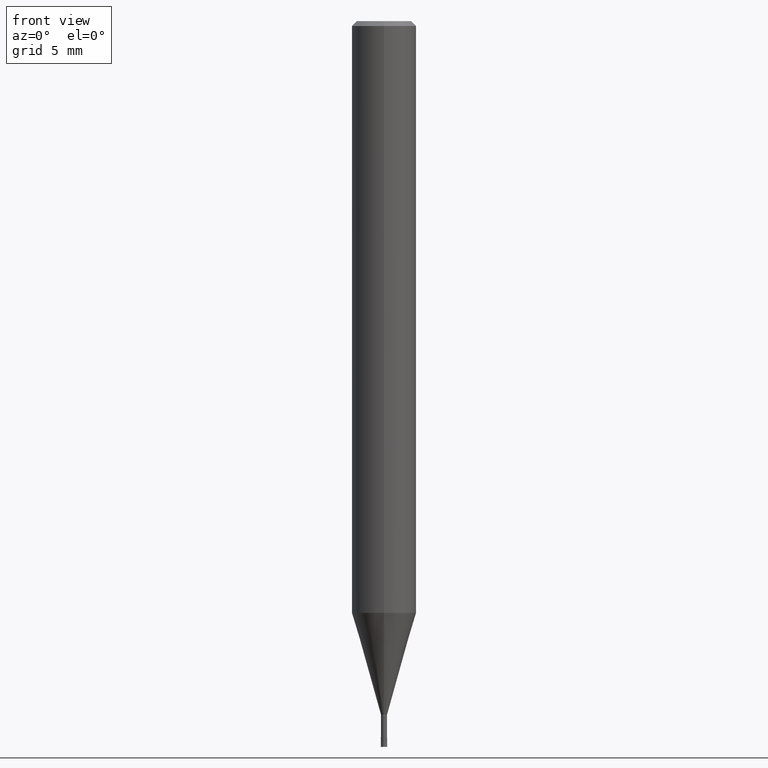
[diagram: clean part render]
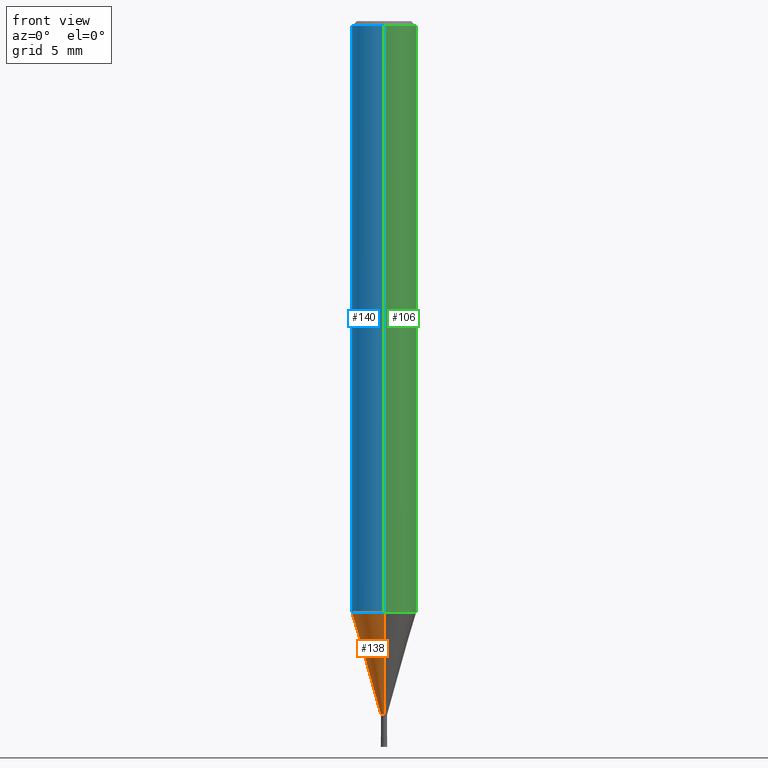
[diagram: same view with three faces highlighted in distinct colors, each labeled with its STEP entity id]
A machine part, front view with three faces highlighted in distinct colors.
Their STEP definitions:

[orange] entity #138 — the highlighted conical surface has half-angle 16.001 deg.
#102=EDGE_CURVE('',#122,#182,#240,.T.);
#122=VERTEX_POINT('',#265);
#126=EDGE_CURVE('',#182,#192,#269,.T.);
#134=EDGE_CURVE('',#192,#180,#277,.T.);
#138=ADVANCED_FACE('',(#282),#283,.T.);
#170=EDGE_CURVE('',#122,#180,#318,.T.);
#180=VERTEX_POINT('',#329);
#182=VERTEX_POINT('',#331);
#192=VERTEX_POINT('',#342);
#240=LINE('',#387,#388);
#265=CARTESIAN_POINT('',(2.3261397690856E-017,-0.18995,-43.0));
#269=CIRCLE('',#426,1.99995);
#277=LINE('',#439,#440);
#282=FACE_OUTER_BOUND('',#445,.T.);
#283=CONICAL_SURFACE('',#446,1.09495,0.279261921280279);
#318=CIRCLE('',#492,0.18995);
#329=CARTESIAN_POINT('',(0.0,0.18995,-43.0));
#331=CARTESIAN_POINT('',(2.44915147732706E-016,-1.99995,-36.688));
#342=CARTESIAN_POINT('',(0.0,1.99995,-36.688));
#387=CARTESIAN_POINT('',(1.34088272711781E-016,-1.09495,-39.844));
#388=VECTOR('',#557,1.0);
#426=AXIS2_PLACEMENT_3D('',#595,#596,#597);
#439=CARTESIAN_POINT('',(-1.34088272711781E-016,1.09495,-39.844));
#440=VECTOR('',#605,1.0);
#445=EDGE_LOOP('',(#615,#616,#617,#618));
#446=AXIS2_PLACEMENT_3D('',#619,#620,#621);
#492=AXIS2_PLACEMENT_3D('',#659,#660,#661);
#557=DIRECTION('',(3.37558135426109E-017,-0.275646238787252,0.961259148743169));
#595=CARTESIAN_POINT('',(0.0,0.0,-36.688));
#596=DIRECTION('',(0.0,0.0,-1.0));
#597=DIRECTION('',(0.0,1.0,0.0));
#605=DIRECTION('',(3.37558135426109E-017,-0.275646238787252,-0.961259148743169));
#615=ORIENTED_EDGE('',*,*,#134,.T.);
#616=ORIENTED_EDGE('',*,*,#170,.F.);
#617=ORIENTED_EDGE('',*,*,#102,.T.);
#618=ORIENTED_EDGE('',*,*,#126,.T.);
#619=CARTESIAN_POINT('',(0.0,0.0,-39.844));
#620=DIRECTION('',(-0.0,-0.0,1.0));
#621=DIRECTION('',(0.0,1.0,0.0));
#659=CARTESIAN_POINT('',(0.0,0.0,-43.0));
#660=DIRECTION('',(0.0,0.0,-1.0));
#661=DIRECTION('',(0.0,1.0,0.0));

[blue] entity #140 — the highlighted cylindrical surface (edge-blend (fillet) strip) has radius 2 mm, axis along (-0, -0, 1).
#124=EDGE_CURVE('',#196,#206,#267,.T.);
#130=EDGE_CURVE('',#166,#196,#273,.T.);
#140=ADVANCED_FACE('',(#285),#286,.T.);
#150=VERTEX_POINT('',#296);
#160=EDGE_CURVE('',#150,#166,#307,.T.);
#166=VERTEX_POINT('',#314);
#188=EDGE_CURVE('',#150,#206,#337,.T.);
#196=VERTEX_POINT('',#346);
#206=VERTEX_POINT('',#359);
#267=LINE('',#422,#423);
#273=CIRCLE('',#432,2.0);
#285=FACE_OUTER_BOUND('',#448,.T.);
#286=CYLINDRICAL_SURFACE('',#449,2.0);
#296=CARTESIAN_POINT('',(2.44921270764475E-016,-2.0,-36.688));
#307=LINE('',#476,#477);
#314=CARTESIAN_POINT('',(2.44921270764475E-016,-2.0,-0.299999999999997));
#337=CIRCLE('',#517,2.0);
#346=CARTESIAN_POINT('',(0.0,2.0,-0.299999999999997));
#359=CARTESIAN_POINT('',(0.0,2.0,-36.688));
#422=CARTESIAN_POINT('',(-2.44921270764475E-016,2.0,-18.494));
#423=VECTOR('',#594,1.0);
#432=AXIS2_PLACEMENT_3D('',#601,#602,#603);
#448=EDGE_LOOP('',(#623,#624,#625,#626));
#449=AXIS2_PLACEMENT_3D('',#627,#628,#629);
#476=CARTESIAN_POINT('',(2.44921270764475E-016,-2.0,-18.494));
#477=VECTOR('',#646,1.0);
#517=AXIS2_PLACEMENT_3D('',#680,#681,#682);
#594=DIRECTION('',(0.0,0.0,-1.0));
#601=CARTESIAN_POINT('',(0.0,0.0,-0.299999999999997));
#602=DIRECTION('',(0.0,0.0,-1.0));
#603=DIRECTION('',(0.0,1.0,0.0));
#623=ORIENTED_EDGE('',*,*,#124,.T.);
#624=ORIENTED_EDGE('',*,*,#188,.F.);
#625=ORIENTED_EDGE('',*,*,#160,.T.);
#626=ORIENTED_EDGE('',*,*,#130,.T.);
#627=CARTESIAN_POINT('',(0.0,0.0,-18.494));
#628=DIRECTION('',(-0.0,-0.0,1.0));
#629=DIRECTION('',(0.0,1.0,0.0));
#646=DIRECTION('',(-0.0,-0.0,1.0));
#680=CARTESIAN_POINT('',(0.0,0.0,-36.688));
#681=DIRECTION('',(0.0,0.0,-1.0));
#682=DIRECTION('',(0.0,1.0,0.0));

[green] entity #106 — the highlighted cylindrical surface (edge-blend (fillet) strip) has radius 2 mm, axis along (-0, -0, 1).
#94=EDGE_CURVE('',#206,#150,#231,.T.);
#106=ADVANCED_FACE('',(#244),#245,.T.);
#124=EDGE_CURVE('',#196,#206,#267,.T.);
#142=EDGE_CURVE('',#196,#166,#288,.T.);
#150=VERTEX_POINT('',#296);
#160=EDGE_CURVE('',#150,#166,#307,.T.);
#166=VERTEX_POINT('',#314);
#196=VERTEX_POINT('',#346);
#206=VERTEX_POINT('',#359);
#231=CIRCLE('',#377,2.0);
#244=FACE_OUTER_BOUND('',#393,.T.);
#245=CYLINDRICAL_SURFACE('',#394,2.0);
#267=LINE('',#422,#423);
#288=CIRCLE('',#452,2.0);
#296=CARTESIAN_POINT('',(2.44921270764475E-016,-2.0,-36.688));
#307=LINE('',#476,#477);
#314=CARTESIAN_POINT('',(2.44921270764475E-016,-2.0,-0.299999999999997));
#346=CARTESIAN_POINT('',(0.0,2.0,-0.299999999999997));
#359=CARTESIAN_POINT('',(0.0,2.0,-36.688));
#377=AXIS2_PLACEMENT_3D('',#542,#543,#544);
#393=EDGE_LOOP('',(#562,#563,#564,#565));
#394=AXIS2_PLACEMENT_3D('',#566,#567,#568);
#422=CARTESIAN_POINT('',(-2.44921270764475E-016,2.0,-18.494));
#423=VECTOR('',#594,1.0);
#452=AXIS2_PLACEMENT_3D('',#630,#631,#632);
#476=CARTESIAN_POINT('',(2.44921270764475E-016,-2.0,-18.494));
#477=VECTOR('',#646,1.0);
#542=CARTESIAN_POINT('',(0.0,0.0,-36.688));
#543=DIRECTION('',(0.0,0.0,-1.0));
#544=DIRECTION('',(0.0,1.0,0.0));
#562=ORIENTED_EDGE('',*,*,#124,.F.);
#563=ORIENTED_EDGE('',*,*,#142,.T.);
#564=ORIENTED_EDGE('',*,*,#160,.F.);
#565=ORIENTED_EDGE('',*,*,#94,.F.);
#566=CARTESIAN_POINT('',(0.0,0.0,-18.494));
#567=DIRECTION('',(-0.0,-0.0,1.0));
#568=DIRECTION('',(0.0,1.0,0.0));
#594=DIRECTION('',(0.0,0.0,-1.0));
#630=CARTESIAN_POINT('',(0.0,0.0,-0.299999999999997));
#631=DIRECTION('',(0.0,0.0,-1.0));
#632=DIRECTION('',(0.0,1.0,0.0));
#646=DIRECTION('',(-0.0,-0.0,1.0));